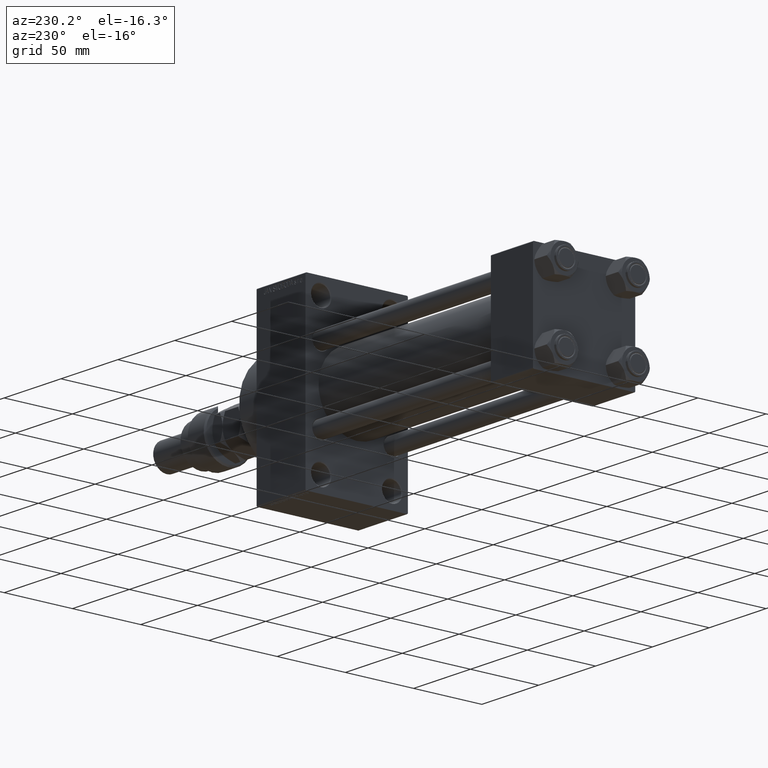
[diagram: clean part render]
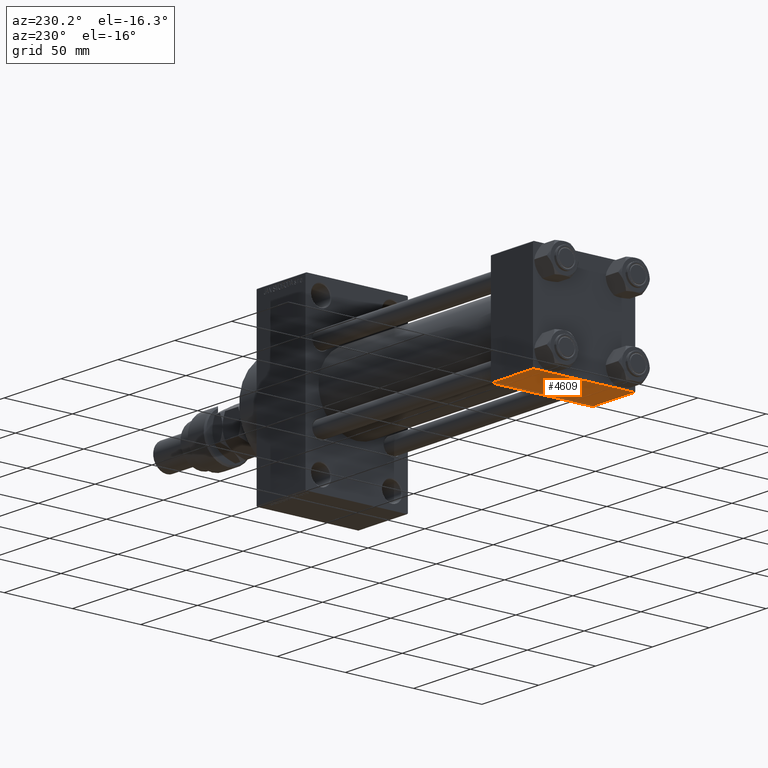
[diagram: same view with one face highlighted and labeled with its STEP entity id]
A machine part, auxiliary view. The second image highlights one B-rep face of the part: STEP entity #4609.
In plain terms, the highlighted planar face has unit normal (0, 0, -1).
Its self-contained STEP definition (entity closure, byte-faithful):
#14 = LINE ( 'NONE', #16000, #7999 ) ;
#1378 = DIRECTION ( 'NONE',  ( 0.000000000000000000, -1.000000000000000000, -9.251858538542972814E-17 ) ) ;
#3501 = VERTEX_POINT ( 'NONE', #39271 ) ;
#4609 = ADVANCED_FACE ( 'NONE', ( #48338 ), #44508, .T. ) ;
#5481 = VERTEX_POINT ( 'NONE', #48843 ) ;
#6134 = DIRECTION ( 'NONE',  ( 0.000000000000000000, 9.251858538542972814E-17, -1.000000000000000000 ) ) ;
#6712 = EDGE_LOOP ( 'NONE', ( #47050, #18646, #22520, #17353 ) ) ;
#7999 = VECTOR ( 'NONE', #49815, 1000.000000000000000 ) ;
#12369 = AXIS2_PLACEMENT_3D ( 'NONE', #44756, #6134, #36893 ) ;
#12639 = VERTEX_POINT ( 'NONE', #33297 ) ;
#14036 = VECTOR ( 'NONE', #22264, 1000.000000000000000 ) ;
#16000 = CARTESIAN_POINT ( 'NONE',  ( 0.000000000000000000, -37.00000000000002132, -37.50000000000000711 ) ) ;
#16855 = LINE ( 'NONE', #20669, #37870 ) ;
#17353 = ORIENTED_EDGE ( 'NONE', *, *, #25826, .T. ) ;
#17562 = EDGE_CURVE ( 'NONE', #12639, #3501, #16855, .T. ) ;
#17946 = CARTESIAN_POINT ( 'NONE',  ( 37.00000000000000000, -37.00000000000002132, -37.50000000000000711 ) ) ;
#18646 = ORIENTED_EDGE ( 'NONE', *, *, #21918, .T. ) ;
#20669 = CARTESIAN_POINT ( 'NONE',  ( 0.000000000000000000, 37.49999999999999289, -37.50000000000000000 ) ) ;
#21918 = EDGE_CURVE ( 'NONE', #12639, #5481, #30594, .T. ) ;
#22264 = DIRECTION ( 'NONE',  ( 0.000000000000000000, -1.000000000000000000, -9.251858538542972814E-17 ) ) ;
#22520 = ORIENTED_EDGE ( 'NONE', *, *, #39844, .T. ) ;
#23235 = CARTESIAN_POINT ( 'NONE',  ( 37.00000000000000000, 36.99999999999997868, -37.50000000000000000 ) ) ;
#23745 = DIRECTION ( 'NONE',  ( 1.000000000000000000, 0.000000000000000000, 0.000000000000000000 ) ) ;
#25826 = EDGE_CURVE ( 'NONE', #42525, #3501, #14, .T. ) ;
#29882 = CARTESIAN_POINT ( 'NONE',  ( 37.00000000000000000, 37.49999999999999289, -37.50000000000000000 ) ) ;
#30594 = LINE ( 'NONE', #23235, #36275 ) ;
#33297 = CARTESIAN_POINT ( 'NONE',  ( 0.000000000000000000, 36.99999999999997868, -37.50000000000000000 ) ) ;
#36275 = VECTOR ( 'NONE', #23745, 1000.000000000000000 ) ;
#36893 = DIRECTION ( 'NONE',  ( 0.000000000000000000, 1.000000000000000000, 9.251858538542972814E-17 ) ) ;
#37870 = VECTOR ( 'NONE', #1378, 1000.000000000000000 ) ;
#39271 = CARTESIAN_POINT ( 'NONE',  ( 0.000000000000000000, -37.00000000000002132, -37.50000000000000711 ) ) ;
#39844 = EDGE_CURVE ( 'NONE', #5481, #42525, #45893, .T. ) ;
#42525 = VERTEX_POINT ( 'NONE', #17946 ) ;
#44508 = PLANE ( 'NONE',  #12369 ) ;
#44756 = CARTESIAN_POINT ( 'NONE',  ( 37.00000000000000000, 37.49999999999999289, -37.50000000000000000 ) ) ;
#45893 = LINE ( 'NONE', #29882, #14036 ) ;
#47050 = ORIENTED_EDGE ( 'NONE', *, *, #17562, .F. ) ;
#48338 = FACE_OUTER_BOUND ( 'NONE', #6712, .T. ) ;
#48843 = CARTESIAN_POINT ( 'NONE',  ( 37.00000000000000000, 36.99999999999997868, -37.50000000000000000 ) ) ;
#49815 = DIRECTION ( 'NONE',  ( -1.000000000000000000, 0.000000000000000000, 0.000000000000000000 ) ) ;